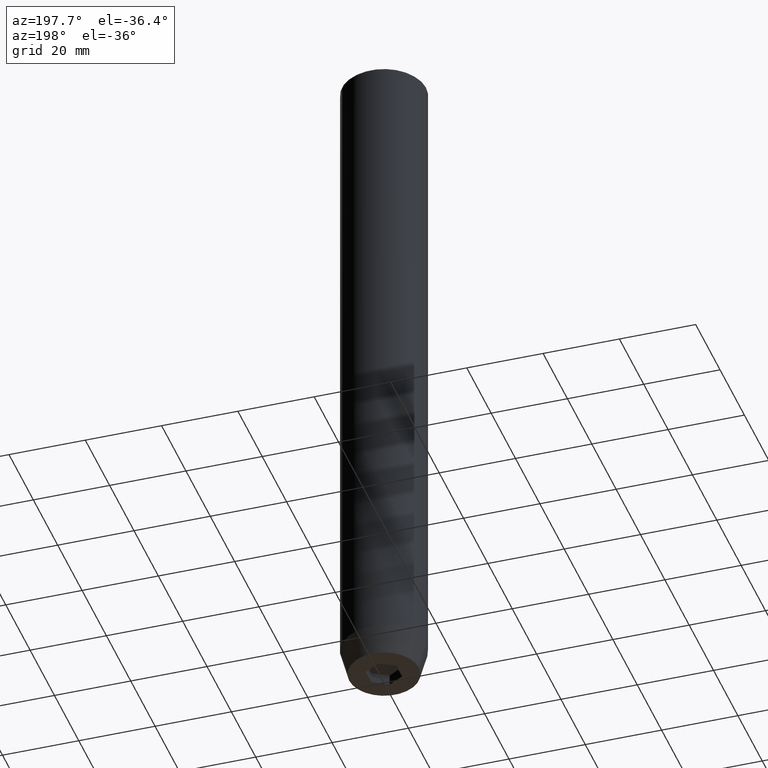
[diagram: clean part render]
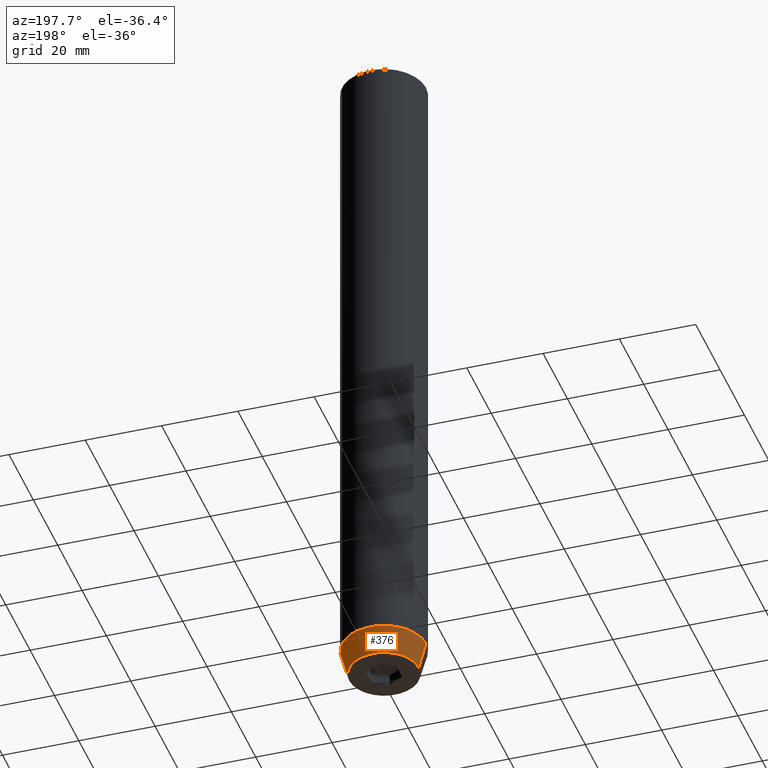
[diagram: same view with one face highlighted and labeled with its STEP entity id]
A machine part, auxiliary view. The second image highlights one B-rep face of the part: STEP entity #376.
In plain terms, the highlighted conical surface has half-angle 15 deg.
Its self-contained STEP definition (entity closure, byte-faithful):
#15 = EDGE_CURVE ( 'NONE', #337, #311, #440, .T. ) ;
#51 = DIRECTION ( 'NONE',  ( -0.000000000000000000, -0.000000000000000000, 1.000000000000000000 ) ) ;
#70 = CARTESIAN_POINT ( 'NONE',  ( -9.124355652982133691, 1.232261386766375507E-15, -180.0000000000000000 ) ) ;
#75 = EDGE_CURVE ( 'NONE', #575, #337, #545, .T. ) ;
#83 = VECTOR ( 'NONE', #348, 1000.000000000000000 ) ;
#91 = CARTESIAN_POINT ( 'NONE',  ( 9.124355652982133691, 0.000000000000000000, -180.0000000000000000 ) ) ;
#120 = CARTESIAN_POINT ( 'NONE',  ( -11.00000000000000000, 1.347111479062088405E-15, -173.0000000000000000 ) ) ;
#132 = DIRECTION ( 'NONE',  ( 1.000000000000000000, 0.000000000000000000, 0.000000000000000000 ) ) ;
#138 = DIRECTION ( 'NONE',  ( 1.000000000000000000, 0.000000000000000000, 0.000000000000000000 ) ) ;
#145 = CARTESIAN_POINT ( 'NONE',  ( 0.000000000000000000, 0.000000000000000000, -173.0000000000000000 ) ) ;
#207 = AXIS2_PLACEMENT_3D ( 'NONE', #145, #306, #302 ) ;
#221 = ORIENTED_EDGE ( 'NONE', *, *, #75, .T. ) ;
#222 = LINE ( 'NONE', #354, #435 ) ;
#251 = EDGE_LOOP ( 'NONE', ( #221, #566, #347, #585 ) ) ;
#258 = DIRECTION ( 'NONE',  ( 0.2588190451025213501, 0.000000000000000000, 0.9659258262890680902 ) ) ;
#276 = CARTESIAN_POINT ( 'NONE',  ( 0.000000000000000000, 0.000000000000000000, -180.0000000000000000 ) ) ;
#283 = VERTEX_POINT ( 'NONE', #331 ) ;
#302 = DIRECTION ( 'NONE',  ( 1.000000000000000000, 0.000000000000000000, 0.000000000000000000 ) ) ;
#306 = DIRECTION ( 'NONE',  ( -0.000000000000000000, -0.000000000000000000, 1.000000000000000000 ) ) ;
#311 = VERTEX_POINT ( 'NONE', #562 ) ;
#331 = CARTESIAN_POINT ( 'NONE',  ( 11.00000000000000000, 0.000000000000000000, -173.0000000000000000 ) ) ;
#337 = VERTEX_POINT ( 'NONE', #70 ) ;
#347 = ORIENTED_EDGE ( 'NONE', *, *, #422, .F. ) ;
#348 = DIRECTION ( 'NONE',  ( -0.2588190451025213501, 3.169619151431772337E-17, 0.9659258262890680902 ) ) ;
#354 = CARTESIAN_POINT ( 'NONE',  ( 11.00000000000000000, 0.000000000000000000, -173.0000000000000000 ) ) ;
#359 = FACE_OUTER_BOUND ( 'NONE', #251, .T. ) ;
#376 = ADVANCED_FACE ( 'NONE', ( #359 ), #418, .T. ) ;
#382 = CIRCLE ( 'NONE', #493, 11.00000000000000000 ) ;
#399 = DIRECTION ( 'NONE',  ( -0.000000000000000000, -0.000000000000000000, 1.000000000000000000 ) ) ;
#416 = EDGE_CURVE ( 'NONE', #575, #283, #222, .T. ) ;
#418 = CONICAL_SURFACE ( 'NONE', #207, 11.00000000000000000, 0.2617993877991500740 ) ;
#422 = EDGE_CURVE ( 'NONE', #283, #311, #382, .T. ) ;
#435 = VECTOR ( 'NONE', #258, 1000.000000000000000 ) ;
#440 = LINE ( 'NONE', #120, #83 ) ;
#442 = CARTESIAN_POINT ( 'NONE',  ( 0.000000000000000000, 0.000000000000000000, -173.0000000000000000 ) ) ;
#493 = AXIS2_PLACEMENT_3D ( 'NONE', #442, #399, #132 ) ;
#526 = AXIS2_PLACEMENT_3D ( 'NONE', #276, #51, #138 ) ;
#545 = CIRCLE ( 'NONE', #526, 9.124355652982133691 ) ;
#562 = CARTESIAN_POINT ( 'NONE',  ( -11.00000000000000000, 1.347111479062088405E-15, -173.0000000000000000 ) ) ;
#566 = ORIENTED_EDGE ( 'NONE', *, *, #15, .T. ) ;
#575 = VERTEX_POINT ( 'NONE', #91 ) ;
#585 = ORIENTED_EDGE ( 'NONE', *, *, #416, .F. ) ;